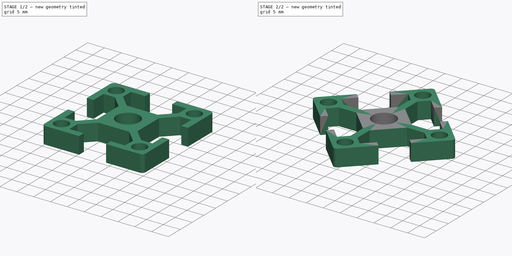
[diagram: build sequence overview — one tinted view per stage of 2, left to right]
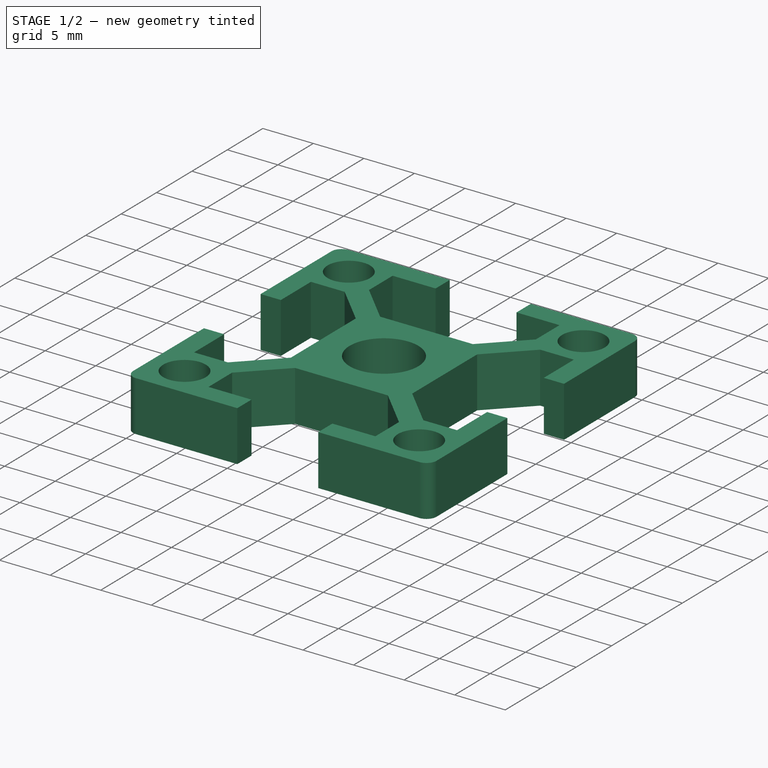
[diagram: stage 1 of 2 — iso view after this stage's code; geometry added in this stage tinted green]
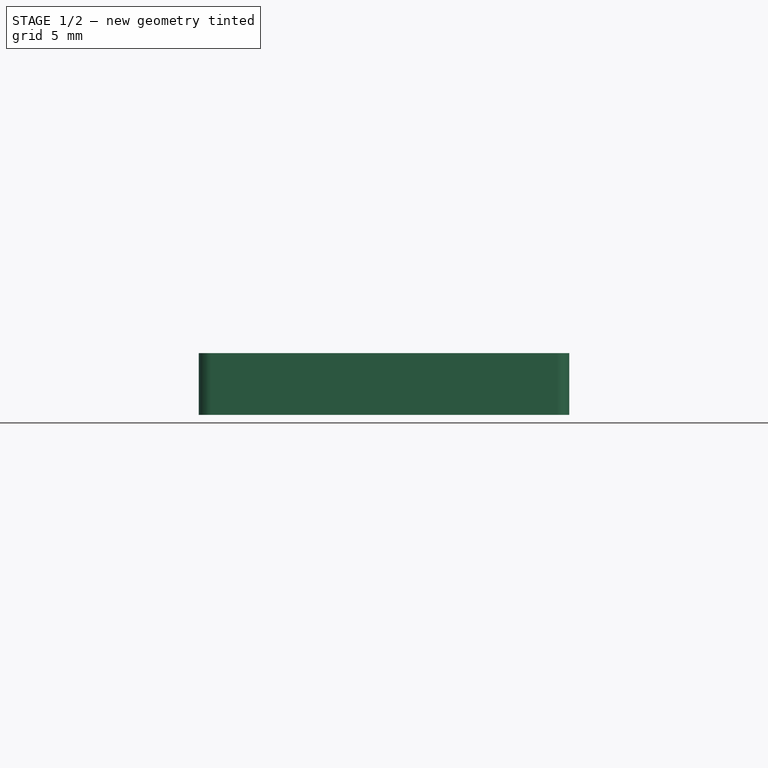
[diagram: stage 1 of 2 — front view after this stage's code; geometry added in this stage tinted green]
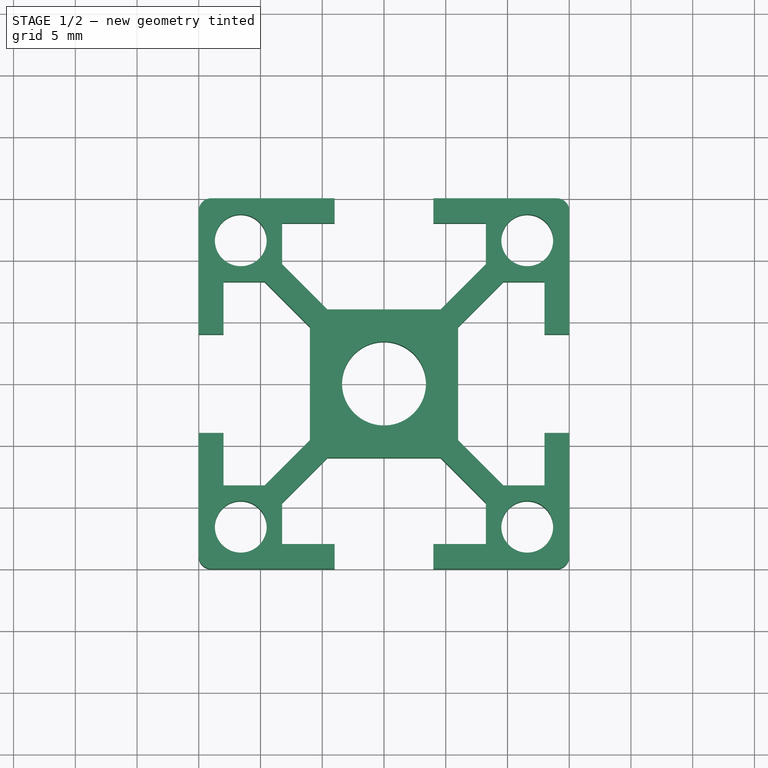
[diagram: stage 1 of 2 — top view after this stage's code; geometry added in this stage tinted green]
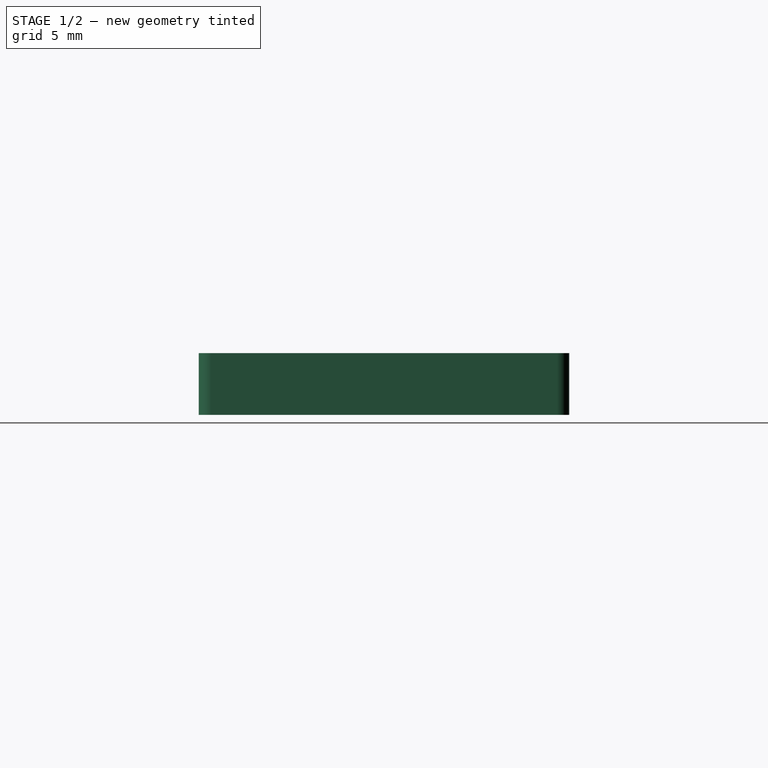
[diagram: stage 1 of 2 — right view after this stage's code; geometry added in this stage tinted green]
FCSTD DOCUMENT  (FreeCAD 0.15R4671 (Git))
Label: T5-ej1
License: CreativeCommons Attribution-ShareAlike
LicenseURL: http://creativecommons.org/licenses/by-sa/4.0/
objects: Part::Feature×2, App::DocumentObjectGroup×2, Sketcher::SketchObject×1, PartDesign::Pad×1, Part::FeaturePython×1
note: 6 computed .brp shape members not serialized (recipe doc carries the construction recipe); baked Part::Feature solids carry a one-line shape summary decoded from their .brp

FEATURE [Part::Feature] Sweep  label="key-ring-model-1"
  Placement = pos=(-1.2,24.7546,1.6391) rot=(0.333333,0.881918,0.333333;1.69612rad)
  shape: bbox 3.31 x 27.02 x 26.33 mm, 4 faces (baked)
FEATURE [Part::Feature] Cut  label="key-model-1"
  Placement = pos=(-5.46976,31.0266,0) rot=(0,0,1;0.517888rad)
  shape: bbox 49.82 x 36.6 x 2.3 mm, 44 faces (baked)
FEATURE [Sketcher::SketchObject] Sketch001  label="perfil"
  sketch-geometry (53):
    g0: LineSegment StartX=-6 StartY=-4.58579 StartZ=0 EndX=-6 EndY=4.58579 EndZ=0
    g1: LineSegment StartX=4.58579 StartY=6 StartZ=0 EndX=-4.58579 EndY=6 EndZ=0
    g2: LineSegment StartX=-6 StartY=4.58579 StartZ=0 EndX=-9.66421 EndY=8.25 EndZ=0
    g3: LineSegment StartX=-4.58579 StartY=6 StartZ=0 EndX=-8.25 EndY=9.66421 EndZ=0
    g4: LineSegment StartX=-9.66421 StartY=8.25 StartZ=0 EndX=-13 EndY=8.25 EndZ=0
    g5: LineSegment StartX=-13 StartY=8.25 StartZ=0 EndX=-13 EndY=4 EndZ=0
    g6: LineSegment StartX=-8.25 StartY=9.66421 StartZ=0 EndX=-8.25 EndY=13 EndZ=0
    g7: LineSegment StartX=-8.25 StartY=13 StartZ=0 EndX=-4 EndY=13 EndZ=0
    g8: LineSegment StartX=-13 StartY=4 StartZ=0 EndX=-15 EndY=4 EndZ=0
    g9: LineSegment StartX=-4 StartY=13 StartZ=0 EndX=-4 EndY=15 EndZ=0
    g10: LineSegment StartX=-4 StartY=15 StartZ=0 EndX=-14 EndY=15 EndZ=0
    g11: LineSegment StartX=-15 StartY=4 StartZ=0 EndX=-15 EndY=14 EndZ=0
    g12: ArcOfCircle CenterX=-14 CenterY=14 CenterZ=0 NormalX=0 NormalY=0 NormalZ=1 Radius=1 StartAngle=1.5708 EndAngle=3.14159
    g13: Circle CenterX=-11.6 CenterY=11.6 CenterZ=0 NormalX=0 NormalY=0 NormalZ=1 Radius=2.1
    g14: Circle CenterX=0 CenterY=0 CenterZ=0 NormalX=0 NormalY=0 NormalZ=1 Radius=3.4
    g15: LineSegment StartX=6 StartY=4.58579 StartZ=0 EndX=6 EndY=-4.58579 EndZ=0
    g16: LineSegment StartX=4.58579 StartY=6 StartZ=0 EndX=8.25 EndY=9.66421 EndZ=0
    g17: LineSegment StartX=8.25 StartY=9.66421 StartZ=0 EndX=8.25 EndY=13 EndZ=0
    g18: LineSegment StartX=8.25 StartY=13 StartZ=0 EndX=4 EndY=13 EndZ=0
    g19: LineSegment StartX=4 StartY=13 StartZ=0 EndX=4 EndY=15 EndZ=0
    g20: LineSegment StartX=6 StartY=4.58579 StartZ=0 EndX=9.66421 EndY=8.25 EndZ=0
    g21: LineSegment StartX=9.66421 StartY=8.25 StartZ=0 EndX=13 EndY=8.25 EndZ=0
    g22: LineSegment StartX=13 StartY=8.25 StartZ=0 EndX=13 EndY=4 EndZ=0
    g23: LineSegment StartX=13 StartY=4 StartZ=0 EndX=15 EndY=4 EndZ=0
    g24: LineSegment StartX=15 StartY=4 StartZ=0 EndX=15 EndY=14 EndZ=0
    g25: Circle CenterX=11.6 CenterY=11.6 CenterZ=0 NormalX=0 NormalY=0 NormalZ=1 Radius=2.1
    g26: LineSegment StartX=4 StartY=15 StartZ=0 EndX=14 EndY=15 EndZ=0
    g27: ArcOfCircle CenterX=14 CenterY=14 CenterZ=0 NormalX=0 NormalY=0 NormalZ=1 Radius=1 StartAngle=6.28319 EndAngle=7.85398
    g28: LineSegment StartX=6 StartY=-4.58579 StartZ=0 EndX=9.66421 EndY=-8.25 EndZ=0
    g29: LineSegment StartX=9.66421 StartY=-8.25 StartZ=0 EndX=13 EndY=-8.25 EndZ=0
    g30: LineSegment StartX=13 StartY=-8.25 StartZ=0 EndX=13 EndY=-4 EndZ=0
    g31: LineSegment StartX=13 StartY=-4 StartZ=0 EndX=15 EndY=-4 EndZ=0
    g32: LineSegment StartX=15 StartY=-4 StartZ=0 EndX=15 EndY=-14 EndZ=0
    g33: LineSegment StartX=14 StartY=-15 StartZ=0 EndX=4 EndY=-15 EndZ=0
    g34: LineSegment StartX=4 StartY=-15 StartZ=0 EndX=4 EndY=-13 EndZ=0
    g35: LineSegment StartX=4 StartY=-13 StartZ=0 EndX=8.25 EndY=-13 EndZ=0
    g36: LineSegment StartX=8.25 StartY=-13 StartZ=0 EndX=8.25 EndY=-9.66421 EndZ=0
    g37: LineSegment StartX=8.25 StartY=-9.66421 StartZ=0 EndX=4.58579 EndY=-6 EndZ=0
    g38: LineSegment StartX=4.58579 StartY=-6 StartZ=0 EndX=-4.58579 EndY=-6 EndZ=0
    g39: LineSegment StartX=-4.58579 StartY=-6 StartZ=0 EndX=-8.25 EndY=-9.66421 EndZ=0
    g40: LineSegment StartX=-8.25 StartY=-9.66421 StartZ=0 EndX=-8.25 EndY=-13 EndZ=0
    g41: LineSegment StartX=-8.25 StartY=-13 StartZ=0 EndX=-4 EndY=-13 EndZ=0
    g42: LineSegment StartX=-4 StartY=-13 StartZ=0 EndX=-4 EndY=-15 EndZ=0
    g43: LineSegment StartX=-4 StartY=-15 StartZ=0 EndX=-14 EndY=-15 EndZ=0
    g44: ArcOfCircle CenterX=14 CenterY=-14 CenterZ=0 NormalX=0 NormalY=0 NormalZ=1 Radius=1 StartAngle=4.71239 EndAngle=6.28319
    g45: LineSegment StartX=-6 StartY=-4.58579 StartZ=0 EndX=-9.66421 EndY=-8.25 EndZ=0
    g46: LineSegment StartX=-9.66421 StartY=-8.25 StartZ=0 EndX=-13 EndY=-8.25 EndZ=0
    g47: LineSegment StartX=-13 StartY=-8.25 StartZ=0 EndX=-13 EndY=-4 EndZ=0
    g48: LineSegment StartX=-13 StartY=-4 StartZ=0 EndX=-15 EndY=-4 EndZ=0
    g49: LineSegment StartX=-15 StartY=-4 StartZ=0 EndX=-15 EndY=-14 EndZ=0
    g50: ArcOfCircle CenterX=-14 CenterY=-14 CenterZ=0 NormalX=0 NormalY=0 NormalZ=1 Radius=0.999995 StartAngle=3.14159 EndAngle=4.71239
    g51: Circle CenterX=-11.6 CenterY=-11.6 CenterZ=0 NormalX=0 NormalY=0 NormalZ=1 Radius=2.1
    g52: Circle CenterX=11.6 CenterY=-11.6 CenterZ=0 NormalX=0 NormalY=0 NormalZ=1 Radius=2.1
  constraints (125):
    c: DistanceX(g-1,g0) = -6
    c: Vertical(g0)
    c: Horizontal(g1)
    c: Equal(g0,g1)
    c: Coincident(g0,g2)
    c: Angle(g2,g0) = 2.35619
    c: Coincident(g3,g1)
    c: Parallel(g2,g3)
    c: Equal(g3,g2)
    c: Coincident(g4,g2)
    c: Horizontal(g4)
    c: Coincident(g4,g5)
    c: Vertical(g5)
    c: Coincident(g6,g3)
    c: Vertical(g6)
    c: Equal(g4,g6)
    c: Coincident(g7,g6)
    c: Horizontal(g7)
    c: Equal(g7,g5)
    c: Coincident(g8,g5)
    c: Horizontal(g8)
    c: Coincident(g9,g7)
    c: Vertical(g9)
    c: DistanceX(g-1,g7) = -4
    c: DistanceY(g9) = 2
    c: Coincident(g10,g9)
    c: Horizontal(g10)
    c: Coincident(g11,g8)
    c: Vertical(g11)
    c: Equal(g10,g11)
    c: DistanceY(g-1,g10) = 15
    c: Coincident(g12,g10)
    c: Coincident(g12,g11)
    c: Radius(g12) = 1
    c: Tangent(g12,g11)
    c: Equal(g8,g9)
    c: Distance(g1,g0) = 2
    c: DistanceX(g-1,g3) = -8.25
    c: Radius(g13) = 2.1
    c: DistanceY(g-1,g13) = 11.6
    c: DistanceX(g-1,g13) = -11.6
    c: Coincident(g14,g-1)
    c: Radius(g14) = 3.4
    c: DistanceY(g-1,g1) = 6
    c: DistanceY(g-1,g5) = 4
    c: Symmetric(g15,g0,g-2)
    c: Symmetric(g0,g15,g-2)
    c: Coincident(g16,g1)
    c: Symmetric(g1,g1,g-2)
    c: Symmetric(g16,g3,g-2)
    c: Coincident(g17,g16)
    c: Symmetric(g17,g6,g-2)
    c: Coincident(g18,g17)
    c: Symmetric(g18,g7,g-2)
    c: Coincident(g19,g18)
    c: Symmetric(g19,g9,g-2)
    c: Coincident(g20,g21)
    c: Coincident(g21,g22)
    c: Coincident(g22,g23)
    c: Coincident(g23,g24)
    c: Coincident(g20,g15)
    c: Symmetric(g20,g2,g-2)
    c: Symmetric(g21,g4,g-2)
    c: Symmetric(g22,g5,g-2)
    c: Symmetric(g23,g8,g-2)
    c: Symmetric(g24,g11,g-2)
    c: Symmetric(g25,g13,g-2)
    c: Equal(g25,g13)
    c: Coincident(g26,g19)
    c: Symmetric(g26,g10,g-2)
    c: Tangent(g27,g26) = 1.5708
    c: Radius(g27) = 1
    c: Coincident(g27,g24)
    c: Coincident(g28,g29)
    c: Coincident(g29,g30)
    c: Coincident(g30,g31)
    c: Coincident(g31,g32)
    c: Coincident(g28,g15)
    c: Symmetric(g28,g20,g-1)
    c: Symmetric(g29,g21,g-1)
    c: Symmetric(g30,g22,g-1)
    c: Symmetric(g31,g23,g-1)
    c: Symmetric(g32,g24,g-1)
    c: Coincident(g33,g34)
    c: Coincident(g34,g35)
    c: Coincident(g35,g36)
    c: Coincident(g36,g37)
    c: Coincident(g37,g38)
    c: Coincident(g38,g39)
    c: Coincident(g39,g40)
    c: Coincident(g40,g41)
    c: Coincident(g41,g42)
    c: Coincident(g42,g43)
    c: Symmetric(g42,g9,g-1)
    c: Symmetric(g41,g7,g-1)
    c: Symmetric(g40,g6,g-1)
    c: Symmetric(g39,g3,g-1)
    c: Symmetric(g38,g1,g-1)
    c: Symmetric(g37,g1,g-1)
    c: Symmetric(g36,g16,g-1)
    c: Symmetric(g35,g17,g-1)
    c: Symmetric(g34,g18,g-1)
    c: Symmetric(g33,g19,g-1)
    c: Symmetric(g33,g26,g-1)
    c: Radius(g44) = 1
    c: Coincident(g44,g33)
    c: Coincident(g44,g32)
    c: Symmetric(g43,g10,g-1)
    c: Coincident(g45,g46)
    c: Coincident(g46,g47)
    c: Coincident(g47,g48)
    c: Coincident(g48,g49)
    c: Coincident(g0,g45)
    c: Symmetric(g45,g2,g-1)
    c: Symmetric(g46,g4,g-1)
    c: Symmetric(g47,g5,g-1)
    c: Symmetric(g48,g8,g-1)
    c: Symmetric(g49,g11,g-1)
    c: Coincident(g50,g49)
    c: Coincident(g50,g43)
    c: Tangent(g50,g49)
    c: Symmetric(g51,g13,g-1)
    c: Equal(g51,g13)
    c: Symmetric(g52,g51,g-2)
    c: Equal(g52,g51)
FEATURE [PartDesign::Pad] Pad  label="perfil_misumi_hfs30x30w8"
  Length = 5
  Length2 = 100
  Sketch = -> Sketch001
  Type = 0
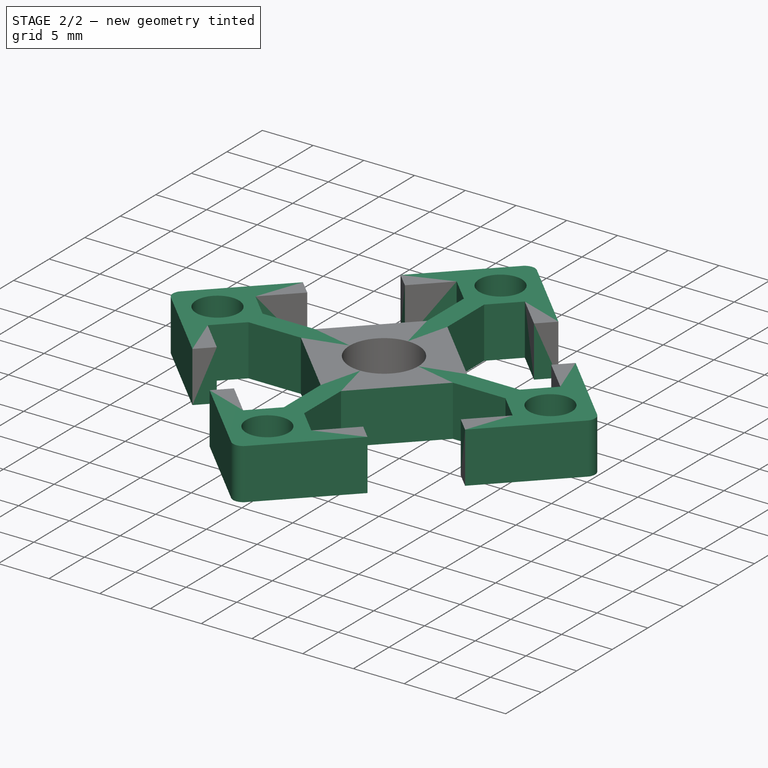
[diagram: stage 2 of 2 — iso view after this stage's code; geometry added in this stage tinted green]
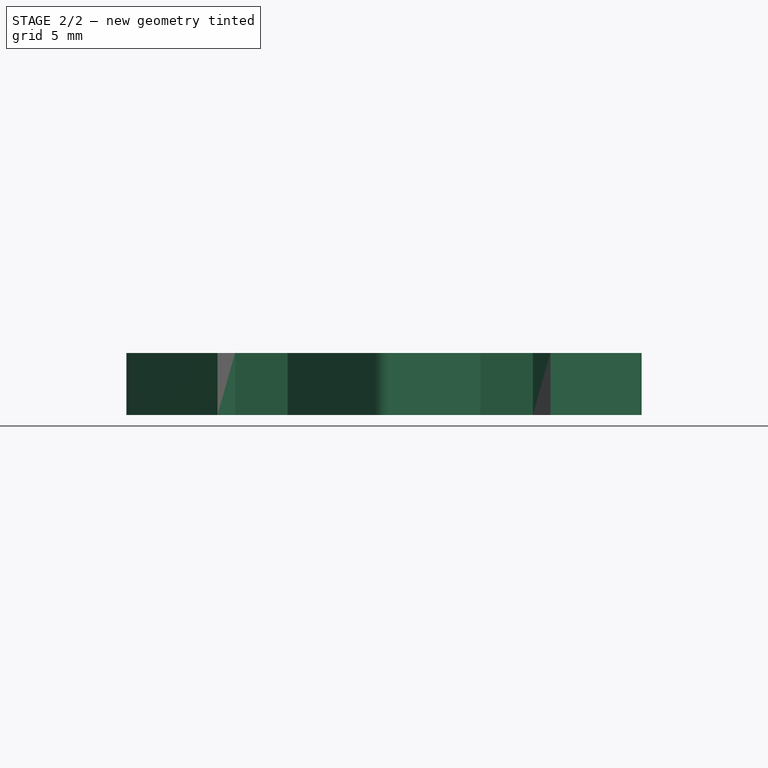
[diagram: stage 2 of 2 — front view after this stage's code; geometry added in this stage tinted green]
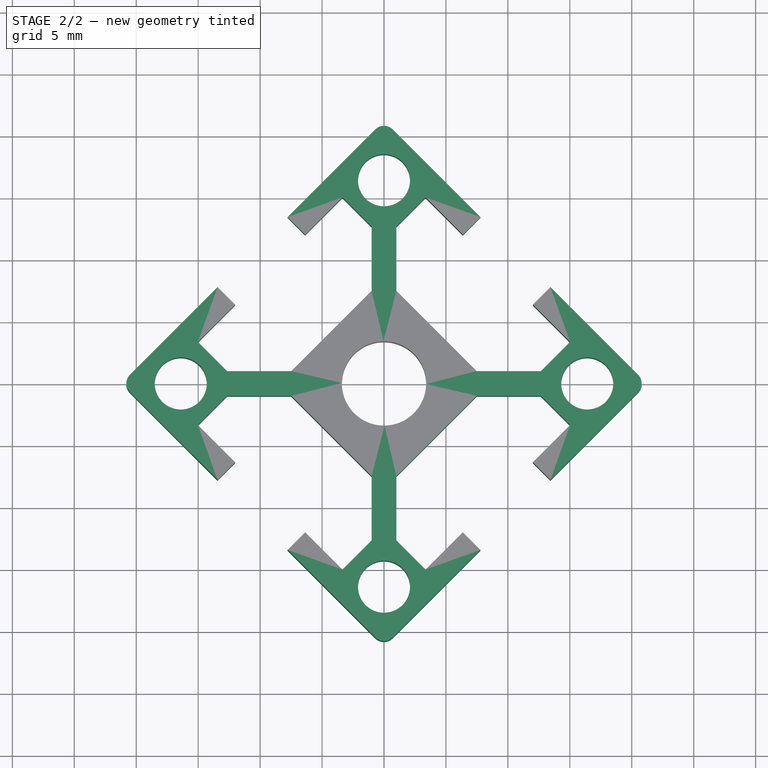
[diagram: stage 2 of 2 — top view after this stage's code; geometry added in this stage tinted green]
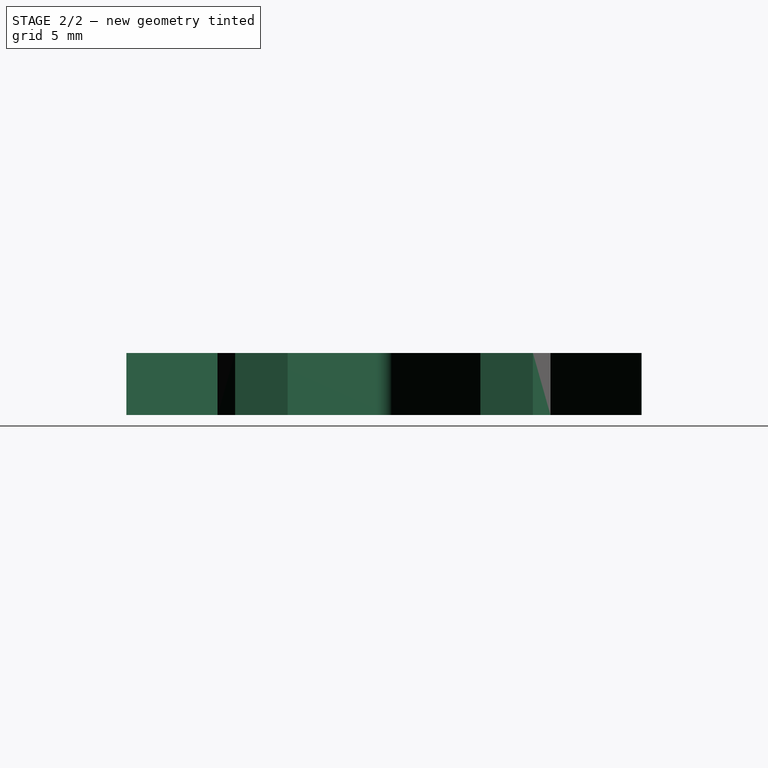
[diagram: stage 2 of 2 — right view after this stage's code; geometry added in this stage tinted green]
FEATURE [App::DocumentObjectGroup] Group002  label="perfil_misumi_hfs30x30x8"
  Group = -> [Pad]
FEATURE [Part::FeaturePython] Clone  label="Clon perfil_misumi_hfs30x30w8"  # Draft clone (typed FeaturePython)
  Objects = -> [Pad]
  Placement = pos=(0,0,0) rot=(0,0,1;0.785398rad)
  Scale = (1,1,1)
FEATURE [App::DocumentObjectGroup] Group  label="Assembly"
  Group = -> [Sweep,Cut,Clone]
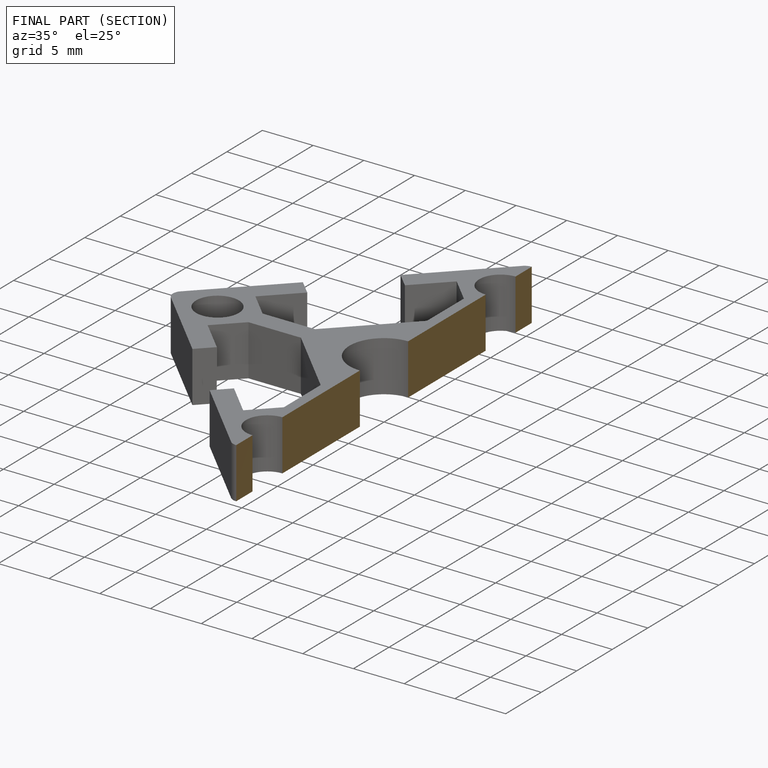
[diagram: finished part — half-section view (interior)]
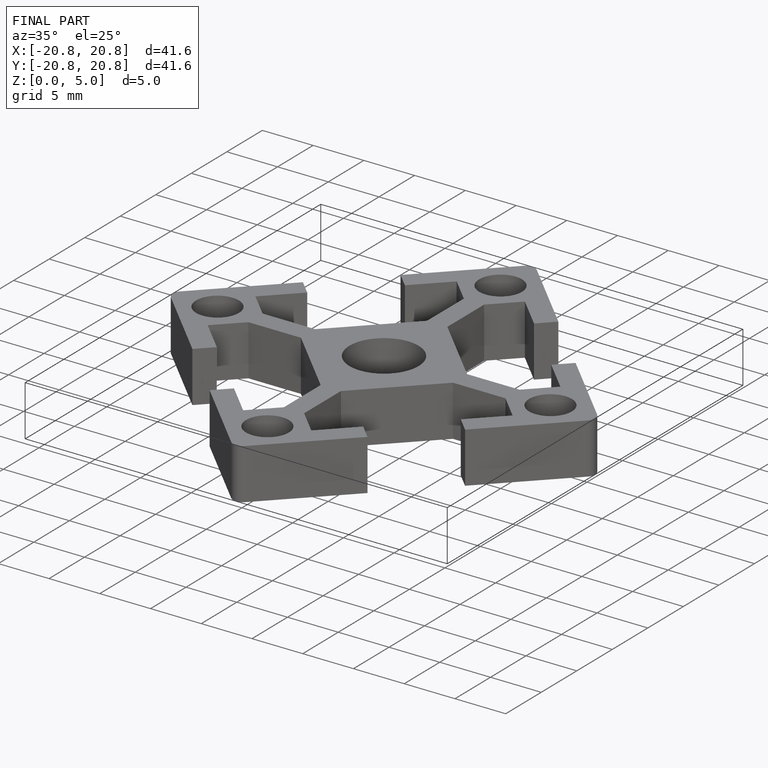
[diagram: finished part — iso view with bounding-box wireframe]
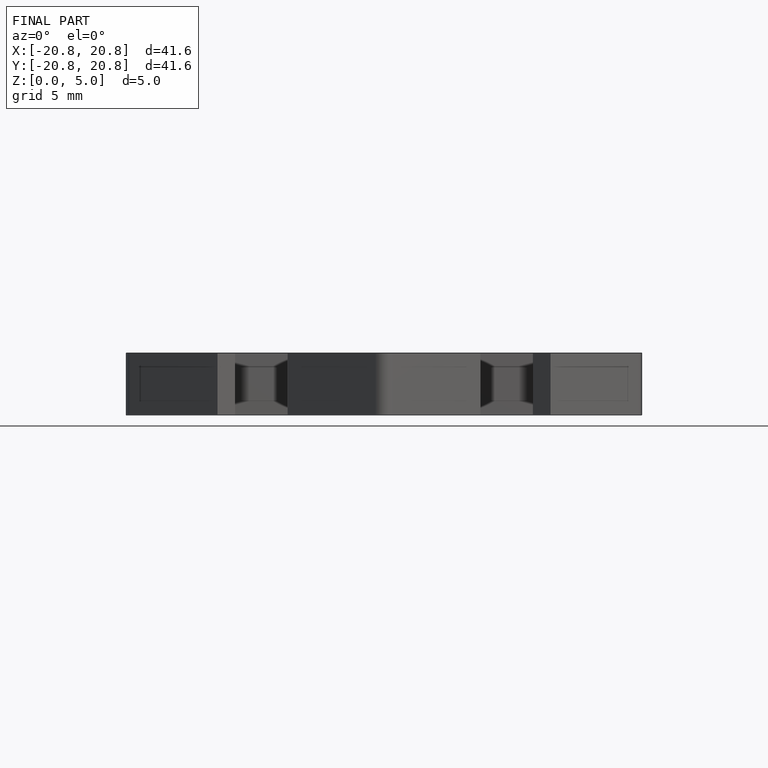
[diagram: finished part — front view with bounding-box wireframe]
